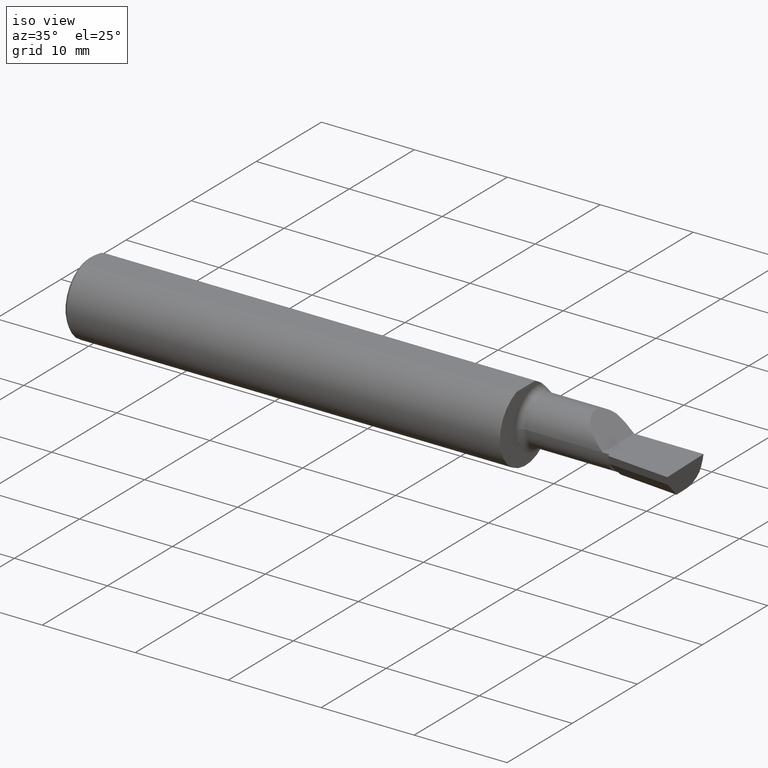
[diagram: clean part render]
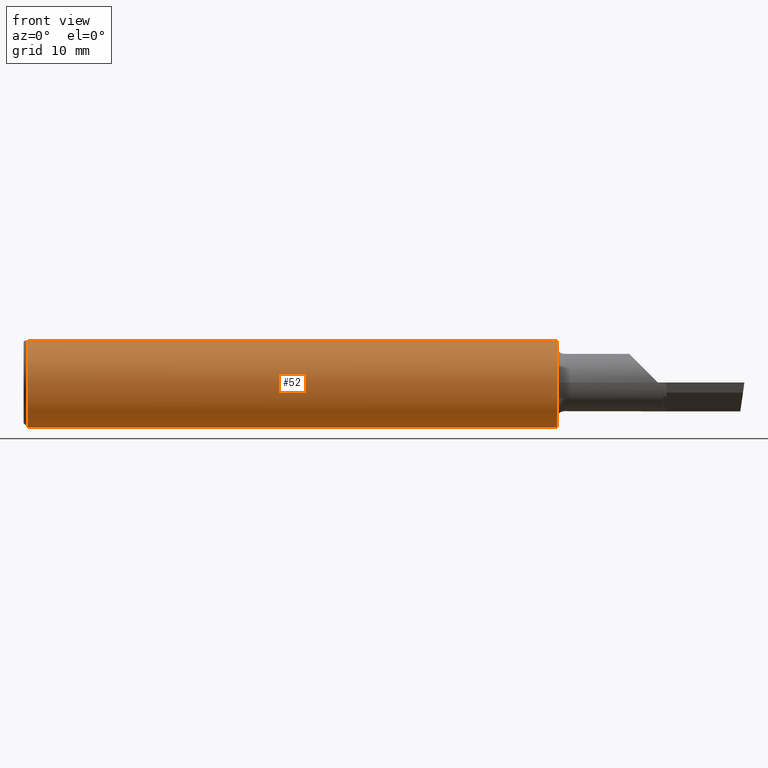
[diagram: tour spotlight — one face highlighted and labeled with its STEP entity id]
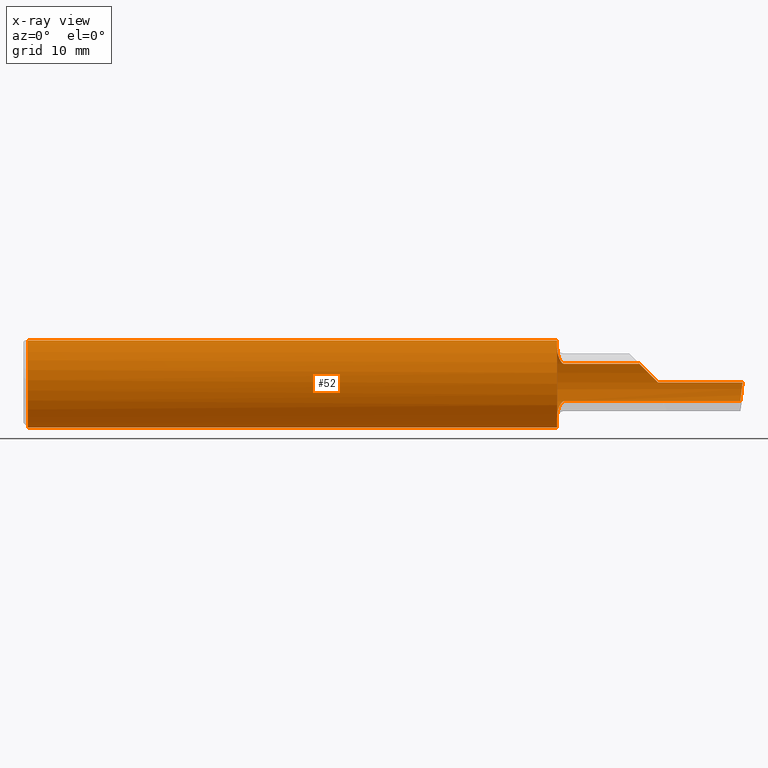
[diagram: x-ray of the same camera — body ghosted, this tour face saturated]
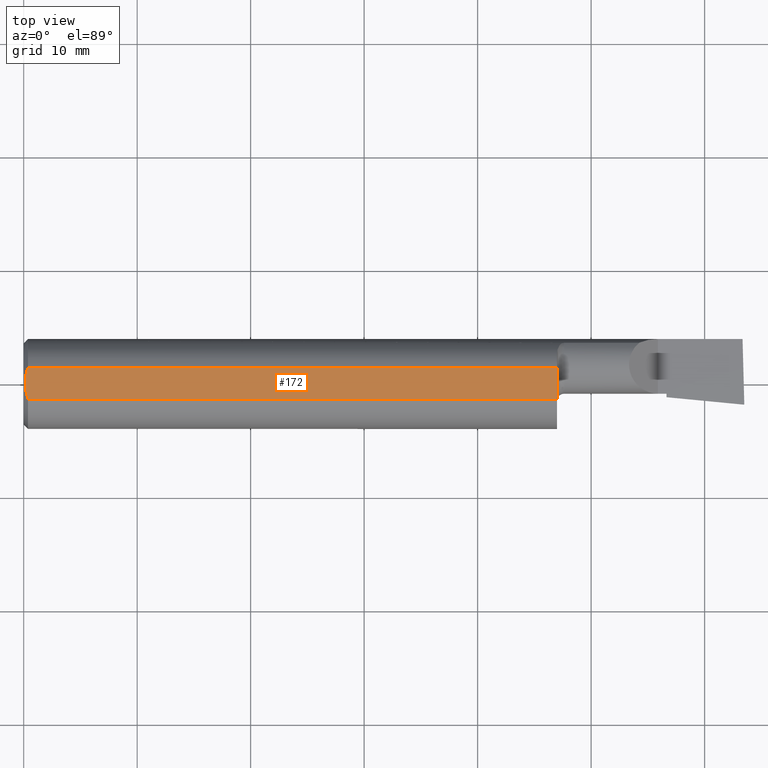
[diagram: tour spotlight — one face highlighted and labeled with its STEP entity id]
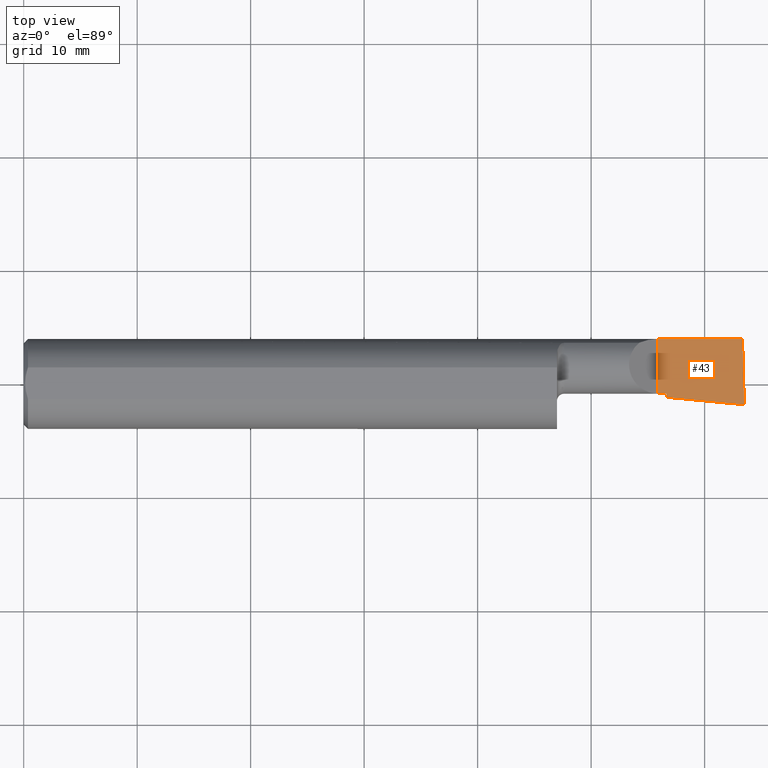
[diagram: tour spotlight — one face highlighted and labeled with its STEP entity id]
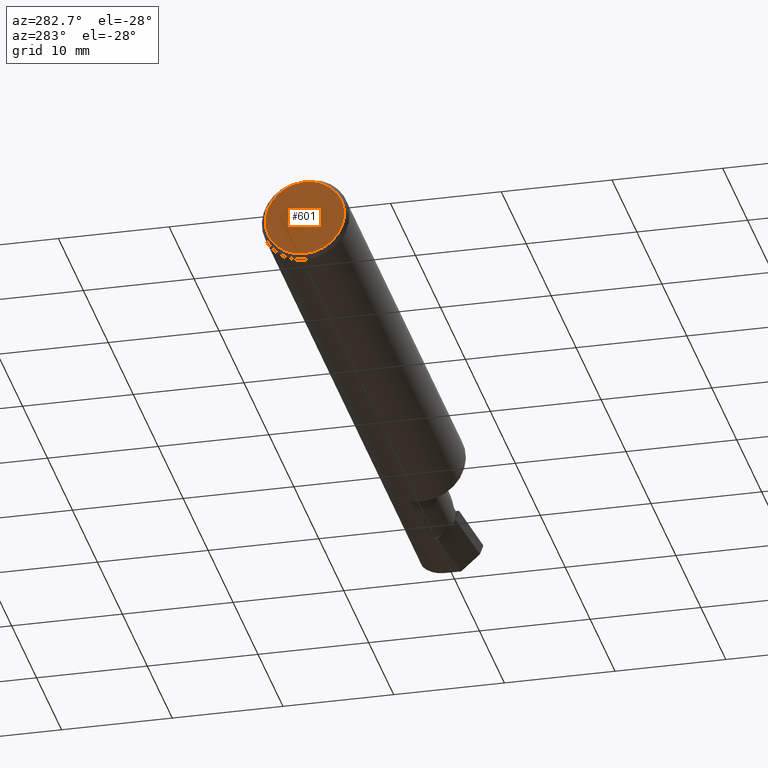
[diagram: tour spotlight — one face highlighted and labeled with its STEP entity id]
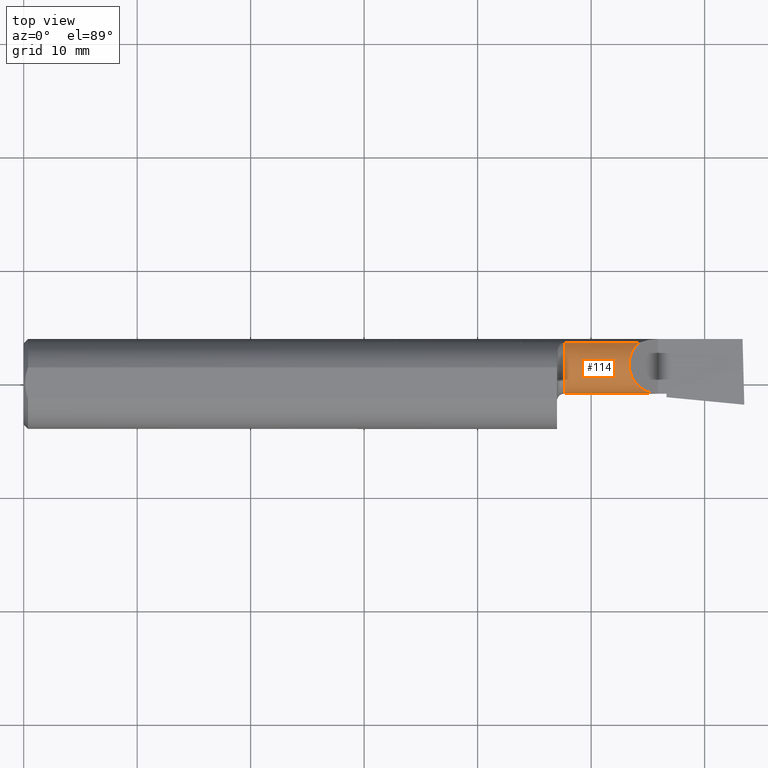
[diagram: tour spotlight — one face highlighted and labeled with its STEP entity id]
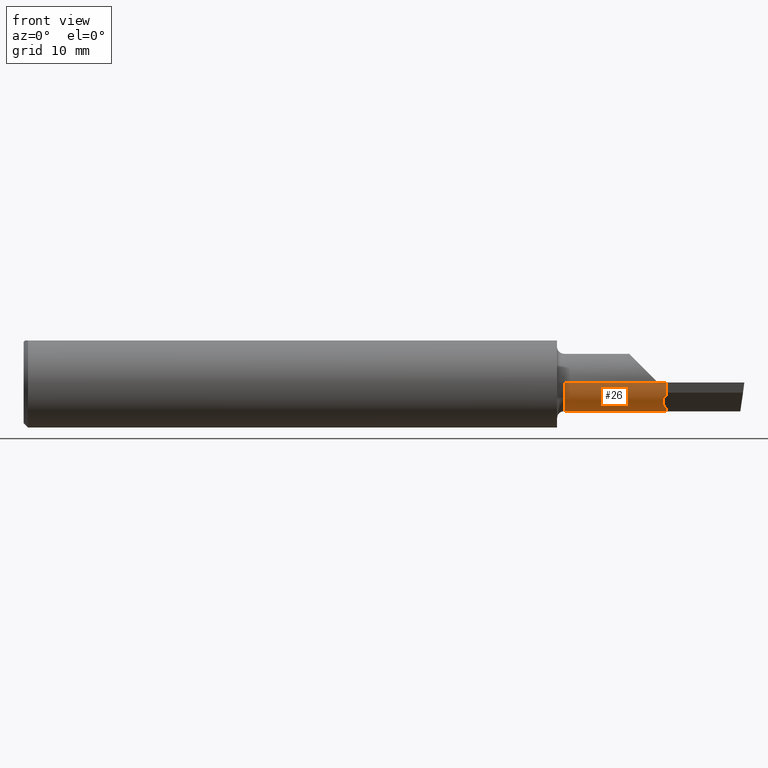
[diagram: tour spotlight — one face highlighted and labeled with its STEP entity id]
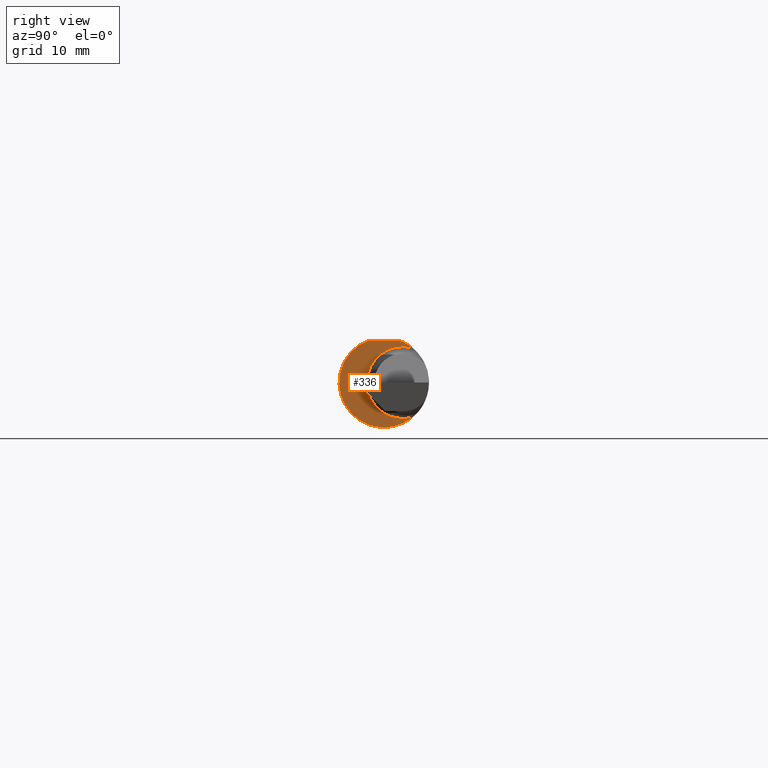
[diagram: tour spotlight — one face highlighted and labeled with its STEP entity id]
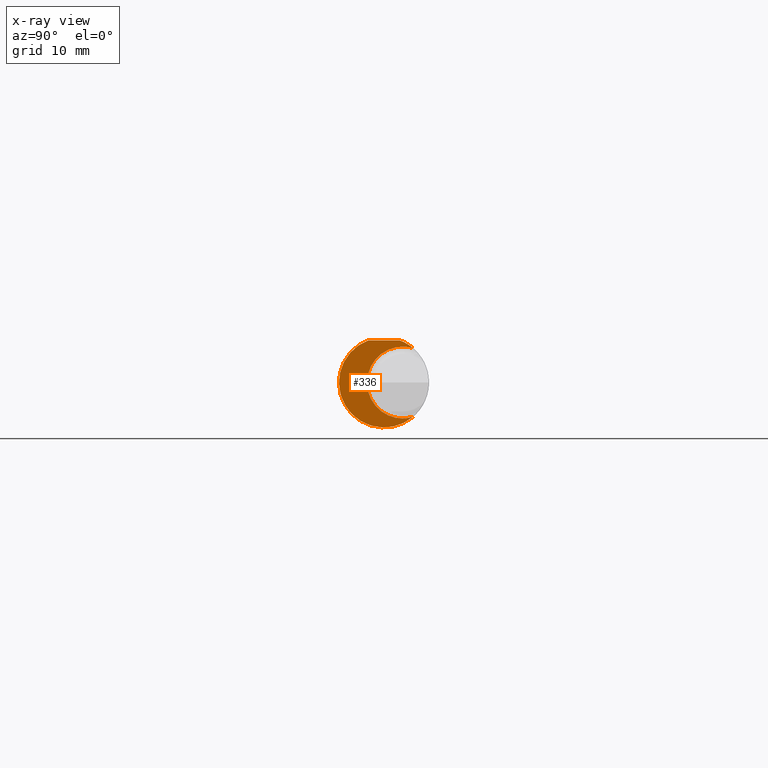
[diagram: x-ray of the same camera — body ghosted, this tour face saturated]
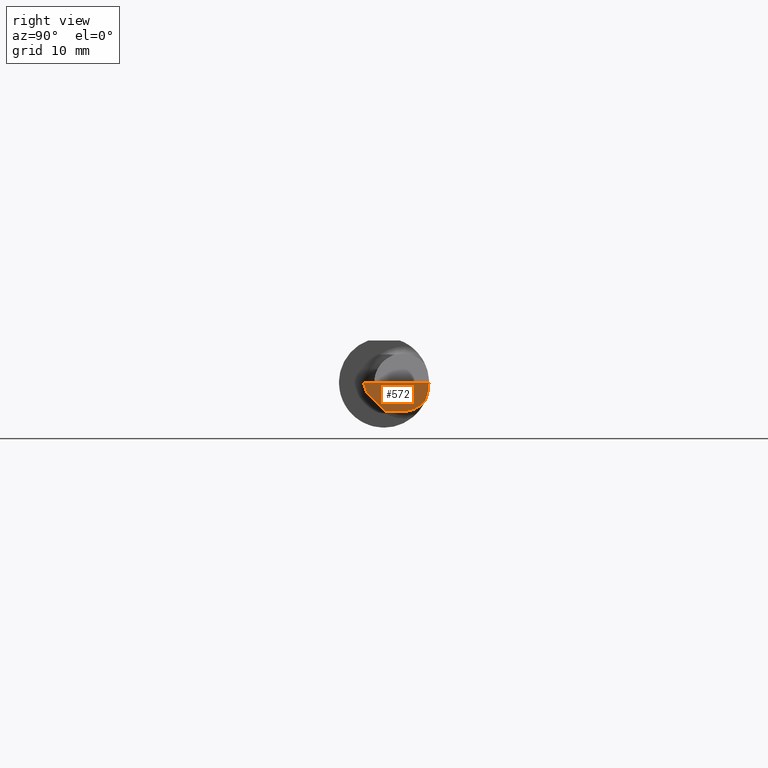
[diagram: tour spotlight — one face highlighted and labeled with its STEP entity id]
A machine part: a face-by-face anatomy tour. The part has 19 B-rep faces; the first image is the clean iso view, then the 8 largest visible faces are spotlighted one at a time (largest first), each with its STEP entity span.

Face 1 — front view, entity #52. An x-ray twin of the same camera follows (body ghosted, this face saturated) — the face is partly hidden behind the body. In plain terms, the highlighted cylindrical surface (partial cylindrical patch) has radius 3.9649 mm, axis along (-1, -0, -0).
Definition (entity closure, byte-faithful):
#3 = VECTOR ( 'NONE', #644, 39.37007874015748143 ) ;
#7 = ORIENTED_EDGE ( 'NONE', *, *, #68, .T. ) ;
#12 = CARTESIAN_POINT ( 'NONE',  ( 1.856590655429605885, 0.1296720675120674460, 0.08713405786343471349 ) ) ;
#13 = CIRCLE ( 'NONE', #44, 0.1560999999999999888 ) ;
#18 = CARTESIAN_POINT ( 'NONE',  ( 1.863017092274625641, 0.1374043365808043093, 0.07413505991998713129 ) ) ;
#19 = ORIENTED_EDGE ( 'NONE', *, *, #513, .T. ) ;
#36 = ORIENTED_EDGE ( 'NONE', *, *, #663, .T. ) ;
#42 = VERTEX_POINT ( 'NONE', #247 ) ;
#44 = AXIS2_PLACEMENT_3D ( 'NONE', #483, #261, #592 ) ;
#49 = B_SPLINE_CURVE_WITH_KNOTS ( 'NONE', 3,
 ( #459, #516, #669, #90, #499, #12, #230, #18, #186, #563, #306, #408, #620, #455 ),
 .UNSPECIFIED., .F., .F.,
 ( 4, 2, 2, 2, 2, 2, 4 ),
 ( 0.0001856976868807074985, 0.0006805519038525506895, 0.001175406120824394043, 0.001670260337796237180, 0.001917687446282158748, 0.002041401000525119858, 0.002165114554768081401 ),
 .UNSPECIFIED. ) ;
#52 = ADVANCED_FACE ( 'NONE', ( #679 ), #232, .T. ) ;
#53 = DIRECTION ( 'NONE',  ( 0.000000000000000000, 0.000000000000000000, 1.000000000000000000 ) ) ;
#56 = LINE ( 'NONE', #547, #133 ) ;
#58 = CARTESIAN_POINT ( 'NONE',  ( 2.052500000000000213, 0.1419939393939392558, -0.06484544066771610882 ) ) ;
#63 = B_SPLINE_CURVE_WITH_KNOTS ( 'NONE', 3,
 ( #411, #682, #343, #194, #80, #294, #419, #634, #354, #74, #286, #501, #507, #415 ),
 .UNSPECIFIED., .F., .F.,
 ( 4, 2, 2, 2, 2, 2, 4 ),
 ( 1.961289441070630364E-07, 0.0001258819157031970486, 0.0002515677024622870275, 0.0005029392759804661179, 0.001005682423016824841, 0.001508425570053183781, 0.002011168717089542504 ),
 .UNSPECIFIED. ) ;
#68 = EDGE_CURVE ( 'NONE', #377, #606, #266, .T. ) ;
#74 = CARTESIAN_POINT ( 'NONE',  ( 1.853264033160802349, 0.1222037927935205881, -0.09733121088759384698 ) ) ;
#80 = CARTESIAN_POINT ( 'NONE',  ( 1.867803744158916146, 0.1404244429940951777, -0.06818941713933217297 ) ) ;
#85 = CARTESIAN_POINT ( 'NONE',  ( 2.135154559332283597, 0.1419939393939393113, 0.06484544066771606718 ) ) ;
#90 = CARTESIAN_POINT ( 'NONE',  ( 1.852040506864490288, 0.1180407066556266177, 0.1023492120876700051 ) ) ;
#98 = DIRECTION ( 'NONE',  ( -1.000000000000000000, -0.000000000000000000, -0.000000000000000000 ) ) ;
#113 = LINE ( 'NONE', #607, #552 ) ;
#116 = ORIENTED_EDGE ( 'NONE', *, *, #464, .F. ) ;
#117 = ORIENTED_EDGE ( 'NONE', *, *, #138, .T. ) ;
#118 = CARTESIAN_POINT ( 'NONE',  ( 0.01499999999999999944, -0.05497272050753897882, 0.1461000000000000076 ) ) ;
#123 = DIRECTION ( 'NONE',  ( 0.000000000000000000, -1.000000000000000000, 0.000000000000000000 ) ) ;
#128 = CARTESIAN_POINT ( 'NONE',  ( 2.052500000000000213, 0.1419939393939392558, 0.06484544066771610882 ) ) ;
#132 = CIRCLE ( 'NONE', #491, 0.1560999999999999888 ) ;
#133 = VECTOR ( 'NONE', #435, 39.37007874015748143 ) ;
#134 = DIRECTION ( 'NONE',  ( 1.000000000000000000, -3.414809992080329023E-18, 0.000000000000000000 ) ) ;
#136 = CARTESIAN_POINT ( 'NONE',  ( 2.493892030279779792, 0.1560999999999997945, 6.888552856243478599E-17 ) ) ;
#138 = EDGE_CURVE ( 'NONE', #169, #684, #13, .T. ) ;
#152 = CARTESIAN_POINT ( 'NONE',  ( 0.01499999999999999424, 0.000000000000000000, 0.000000000000000000 ) ) ;
#161 = VERTEX_POINT ( 'NONE', #628 ) ;
#169 = VERTEX_POINT ( 'NONE', #521 ) ;
#171 = EDGE_LOOP ( 'NONE', ( #19, #7, #697, #209, #117, #446, #503, #116, #36, #588, #535, #482, #365 ) ) ;
#186 = CARTESIAN_POINT ( 'NONE',  ( 1.864666516289593456, 0.1387430930441306276, 0.07158177069671561865 ) ) ;
#189 = CARTESIAN_POINT ( 'NONE',  ( 2.200000000000000178, 0.1560999999999997667, 9.797174393178826150E-17 ) ) ;
#192 = CARTESIAN_POINT ( 'NONE',  ( 1.875000000000000000, 0.1419939393939390615, -0.06484544066771637250 ) ) ;
#194 = CARTESIAN_POINT ( 'NONE',  ( 1.868987086440955903, 0.1409404987250978125, -0.06711069163632751855 ) ) ;
#195 = DIRECTION ( 'NONE',  ( -1.000000000000000000, -0.000000000000000000, -0.000000000000000000 ) ) ;
#209 = ORIENTED_EDGE ( 'NONE', *, *, #250, .T. ) ;
#211 = DIRECTION ( 'NONE',  ( -1.000000000000000000, -0.000000000000000000, -0.000000000000000000 ) ) ;
#219 = CIRCLE ( 'NONE', #476, 0.1560999999999999888 ) ;
#223 = LINE ( 'NONE', #58, #292 ) ;
#226 = EDGE_CURVE ( 'NONE', #42, #238, #622, .T. ) ;
#230 = CARTESIAN_POINT ( 'NONE',  ( 1.858665904659250856, 0.1330436853938329056, 0.08186319721956687723 ) ) ;
#232 = CYLINDRICAL_SURFACE ( 'NONE', #652, 0.1560999999999999888 ) ;
#238 = VERTEX_POINT ( 'NONE', #85 ) ;
#239 = CARTESIAN_POINT ( 'NONE',  ( 2.135154559332283597, 0.1419939393939393113, 0.06484544066771606718 ) ) ;
#244 = VECTOR ( 'NONE', #134, 39.37007874015748143 ) ;
#247 = CARTESIAN_POINT ( 'NONE',  ( 1.875000000000000000, 0.1419939393939390060, 0.06484544066771646964 ) ) ;
#249 = CARTESIAN_POINT ( 'NONE',  ( 0.01499999999999999424, 0.05497272050753903433, 0.1460999999999999521 ) ) ;
#250 = EDGE_CURVE ( 'NONE', #302, #169, #63, .T. ) ;
#261 = DIRECTION ( 'NONE',  ( -1.000000000000000000, 3.414809992080329023E-18, -0.000000000000000000 ) ) ;
#266 =( BOUNDED_CURVE ( )  B_SPLINE_CURVE ( 3, ( #136, #454, #569, #612 ),
 .UNSPECIFIED., .F., .F. ) 
 B_SPLINE_CURVE_WITH_KNOTS ( ( 4, 4 ),
 ( 4.934903206476686677, 5.363296268785054721 ),
 .UNSPECIFIED. ) 
 CURVE ( )  GEOMETRIC_REPRESENTATION_ITEM ( )  RATIONAL_B_SPLINE_CURVE ( ( 1.000000000000000000, 0.9847649979006014576, 0.9847649979006014576, 1.000000000000000000 ) ) 
 REPRESENTATION_ITEM ( '' )  );
#269 = EDGE_CURVE ( 'NONE', #238, #608, #561, .T. ) ;
#270 = CARTESIAN_POINT ( 'NONE',  ( 1.850000000000000311, -0.05497272050753900657, 0.1461000000000000076 ) ) ;
#271 = VERTEX_POINT ( 'NONE', #512 ) ;
#286 = CARTESIAN_POINT ( 'NONE',  ( 1.852063943834881599, 0.1181307192064760814, -0.1022448908112570387 ) ) ;
#289 = CARTESIAN_POINT ( 'NONE',  ( 0.000000000000000000, 0.000000000000000000, 0.000000000000000000 ) ) ;
#292 = VECTOR ( 'NONE', #484, 39.37007874015748143 ) ;
#294 = CARTESIAN_POINT ( 'NONE',  ( 1.864650979716347967, 0.1387334617349063881, -0.07160083655282396820 ) ) ;
#302 = VERTEX_POINT ( 'NONE', #192 ) ;
#306 = CARTESIAN_POINT ( 'NONE',  ( 1.868988484139260109, 0.1409410548628156068, 0.06710952210203094404 ) ) ;
#318 = EDGE_CURVE ( 'NONE', #271, #161, #132, .T. ) ;
#339 = VERTEX_POINT ( 'NONE', #249 ) ;
#343 = CARTESIAN_POINT ( 'NONE',  ( 1.871725699135996068, 0.1417275062431943844, -0.06543227863119877030 ) ) ;
#344 = CIRCLE ( 'NONE', #623, 0.1560999999999999888 ) ;
#354 = CARTESIAN_POINT ( 'NONE',  ( 1.856590010709524785, 0.1296703571699485136, -0.08713627291424022592 ) ) ;
#359 = EDGE_CURVE ( 'NONE', #161, #42, #49, .T. ) ;
#365 = ORIENTED_EDGE ( 'NONE', *, *, #269, .T. ) ;
#377 = VERTEX_POINT ( 'NONE', #394 ) ;
#385 = CARTESIAN_POINT ( 'NONE',  ( 2.200000000000000178, 0.1560999999999997667, 9.797174393178826150E-17 ) ) ;
#394 = CARTESIAN_POINT ( 'NONE',  ( 2.493892030279779792, 0.1560999999999997945, 6.888552856243478599E-17 ) ) ;
#408 = CARTESIAN_POINT ( 'NONE',  ( 1.871727793412432339, 0.1417279534125320539, 0.06543130843947214670 ) ) ;
#411 = CARTESIAN_POINT ( 'NONE',  ( 1.875000000000000000, 0.1419939393939390615, -0.06484544066771637250 ) ) ;
#415 = CARTESIAN_POINT ( 'NONE',  ( 1.850000000000000311, 0.09941818181818162792, -0.1203463132961162807 ) ) ;
#419 = CARTESIAN_POINT ( 'NONE',  ( 1.862996561902688919, 0.1373850824029523299, -0.07416982835688787357 ) ) ;
#425 = DIRECTION ( 'NONE',  ( -1.000000000000000000, -0.000000000000000000, -0.000000000000000000 ) ) ;
#435 = DIRECTION ( 'NONE',  ( 1.000000000000000000, 0.000000000000000000, 0.000000000000000000 ) ) ;
#444 = CARTESIAN_POINT ( 'NONE',  ( 0.01499999999999999424, 0.000000000000000000, -0.1560999999999999888 ) ) ;
#446 = ORIENTED_EDGE ( 'NONE', *, *, #551, .T. ) ;
#454 = CARTESIAN_POINT ( 'NONE',  ( 2.491232419704100920, 0.1561000000000000443, -0.02246288137099513443 ) ) ;
#455 = CARTESIAN_POINT ( 'NONE',  ( 1.875000000000000000, 0.1419939393939390060, 0.06484544066771646964 ) ) ;
#459 = CARTESIAN_POINT ( 'NONE',  ( 1.850000000000000311, 0.09941818181818162792, 0.1203463132961162807 ) ) ;
#461 = CARTESIAN_POINT ( 'NONE',  ( 2.155587570325277369, 0.1513252362624134539, 0.04441242967472209396 ) ) ;
#464 = EDGE_CURVE ( 'NONE', #339, #693, #219, .T. ) ;
#476 = AXIS2_PLACEMENT_3D ( 'NONE', #537, #425, #53 ) ;
#482 = ORIENTED_EDGE ( 'NONE', *, *, #226, .T. ) ;
#483 = CARTESIAN_POINT ( 'NONE',  ( 1.850000000000000311, 0.000000000000000000, 0.000000000000000000 ) ) ;
#484 = DIRECTION ( 'NONE',  ( -1.000000000000000000, 3.414809992080329023E-18, -0.000000000000000000 ) ) ;
#489 = CARTESIAN_POINT ( 'NONE',  ( 2.486592206520481518, 0.1419939393939392558, -0.06484544066771610882 ) ) ;
#491 = AXIS2_PLACEMENT_3D ( 'NONE', #510, #579, #123 ) ;
#496 = EDGE_CURVE ( 'NONE', #693, #655, #344, .T. ) ;
#499 = CARTESIAN_POINT ( 'NONE',  ( 1.853262464810605081, 0.1222000088982459071, 0.09733625715976138015 ) ) ;
#501 = CARTESIAN_POINT ( 'NONE',  ( 1.850428134837082128, 0.1092850169809853889, -0.1116497630123364365 ) ) ;
#503 = ORIENTED_EDGE ( 'NONE', *, *, #496, .F. ) ;
#507 = CARTESIAN_POINT ( 'NONE',  ( 1.849999999999999645, 0.1044772303701483468, -0.1161670294028998435 ) ) ;
#510 = CARTESIAN_POINT ( 'NONE',  ( 1.850000000000000311, 0.000000000000000000, 0.000000000000000000 ) ) ;
#512 = CARTESIAN_POINT ( 'NONE',  ( 1.850000000000000311, 0.05497272050753902739, 0.1460999999999999521 ) ) ;
#513 = EDGE_CURVE ( 'NONE', #608, #377, #636, .T. ) ;
#516 = CARTESIAN_POINT ( 'NONE',  ( 1.850000000000000311, 0.1044500923568687095, 0.1161894481365072507 ) ) ;
#521 = CARTESIAN_POINT ( 'NONE',  ( 1.850000000000000311, 0.09941818181818162792, -0.1203463132961162807 ) ) ;
#530 = CARTESIAN_POINT ( 'NONE',  ( 3.121792066109142165E-32, 0.1560999999999999333, 3.155924005931204823E-16 ) ) ;
#535 = ORIENTED_EDGE ( 'NONE', *, *, #359, .T. ) ;
#537 = CARTESIAN_POINT ( 'NONE',  ( 0.01499999999999999424, 0.000000000000000000, 0.000000000000000000 ) ) ;
#547 = CARTESIAN_POINT ( 'NONE',  ( 0.000000000000000000, 0.05497272050753903433, 0.1460999999999999521 ) ) ;
#551 = EDGE_CURVE ( 'NONE', #684, #655, #113, .T. ) ;
#552 = VECTOR ( 'NONE', #211, 39.37007874015748143 ) ;
#561 =( BOUNDED_CURVE ( )  B_SPLINE_CURVE ( 3, ( #239, #461, #671, #189 ),
 .UNSPECIFIED., .F., .T. ) 
 B_SPLINE_CURVE_WITH_KNOTS ( ( 4, 4 ),
 ( 1.142403264486529624, 1.570796326794896336 ),
 .UNSPECIFIED. ) 
 CURVE ( )  GEOMETRIC_REPRESENTATION_ITEM ( )  RATIONAL_B_SPLINE_CURVE ( ( 1.000000000000000000, 0.9847649979006014576, 0.9847649979006014576, 1.000000000000000000 ) ) 
 REPRESENTATION_ITEM ( '' )  );
#563 = CARTESIAN_POINT ( 'NONE',  ( 1.867808428589329273, 0.1404263024719109021, 0.06818548243543506859 ) ) ;
#569 = CARTESIAN_POINT ( 'NONE',  ( 2.488761500660856107, 0.1513252362624135372, -0.04441242967472200376 ) ) ;
#574 = DIRECTION ( 'NONE',  ( 0.000000000000000000, 0.000000000000000000, 1.000000000000000000 ) ) ;
#579 = DIRECTION ( 'NONE',  ( -1.000000000000000000, 3.414809992080329023E-18, -0.000000000000000000 ) ) ;
#588 = ORIENTED_EDGE ( 'NONE', *, *, #318, .T. ) ;
#592 = DIRECTION ( 'NONE',  ( 0.000000000000000000, -1.000000000000000000, 0.000000000000000000 ) ) ;
#606 = VERTEX_POINT ( 'NONE', #489 ) ;
#607 = CARTESIAN_POINT ( 'NONE',  ( 0.000000000000000000, -0.05497272050753897882, 0.1461000000000000076 ) ) ;
#608 = VERTEX_POINT ( 'NONE', #385 ) ;
#612 = CARTESIAN_POINT ( 'NONE',  ( 2.486592206520481518, 0.1419939393939392558, -0.06484544066771610882 ) ) ;
#620 = CARTESIAN_POINT ( 'NONE',  ( 1.873328253254593845, 0.1419939393940946315, 0.06484544066737613077 ) ) ;
#622 = LINE ( 'NONE', #128, #244 ) ;
#623 = AXIS2_PLACEMENT_3D ( 'NONE', #152, #98, #690 ) ;
#628 = CARTESIAN_POINT ( 'NONE',  ( 1.850000000000000311, 0.09941818181818162792, 0.1203463132961162807 ) ) ;
#634 = CARTESIAN_POINT ( 'NONE',  ( 1.858682090340783244, 0.1330572531291638605, -0.08183785561185286106 ) ) ;
#636 = LINE ( 'NONE', #530, #3 ) ;
#644 = DIRECTION ( 'NONE',  ( 1.000000000000000000, 0.000000000000000000, 0.000000000000000000 ) ) ;
#652 = AXIS2_PLACEMENT_3D ( 'NONE', #289, #195, #574 ) ;
#655 = VERTEX_POINT ( 'NONE', #118 ) ;
#663 = EDGE_CURVE ( 'NONE', #339, #271, #56, .T. ) ;
#669 = CARTESIAN_POINT ( 'NONE',  ( 1.850415155711667037, 0.1091772789608302235, 0.1117554983051645134 ) ) ;
#671 = CARTESIAN_POINT ( 'NONE',  ( 2.177537118629004453, 0.1560999999999999888, 0.02246288137099531138 ) ) ;
#677 = EDGE_CURVE ( 'NONE', #606, #302, #223, .T. ) ;
#679 = FACE_OUTER_BOUND ( 'NONE', #171, .T. ) ;
#682 = CARTESIAN_POINT ( 'NONE',  ( 1.873318217257565310, 0.1419939393939391725, -0.06484544066771646964 ) ) ;
#684 = VERTEX_POINT ( 'NONE', #270 ) ;
#690 = DIRECTION ( 'NONE',  ( 0.000000000000000000, 0.000000000000000000, 1.000000000000000000 ) ) ;
#693 = VERTEX_POINT ( 'NONE', #444 ) ;
#697 = ORIENTED_EDGE ( 'NONE', *, *, #677, .T. ) ;

Face 2 — top view, entity #172. In plain terms, the highlighted planar face has unit normal (0, -0, -1).
Definition (entity closure, byte-faithful):
#29 = CARTESIAN_POINT ( 'NONE',  ( 0.01499999999999999944, -0.05497272050753897882, 0.1461000000000000076 ) ) ;
#32 = CARTESIAN_POINT ( 'NONE',  ( 0.005000000000000138882, 0.009391435229055633896, 0.1460999999999999521 ) ) ;
#56 = LINE ( 'NONE', #547, #133 ) ;
#59 = ORIENTED_EDGE ( 'NONE', *, *, #663, .F. ) ;
#62 = EDGE_CURVE ( 'NONE', #684, #271, #629, .T. ) ;
#65 = EDGE_LOOP ( 'NONE', ( #466, #647, #59, #443, #99 ) ) ;
#77 = CARTESIAN_POINT ( 'NONE',  ( 0.005000000000000177913, 2.057148876208899831E-17, 0.1460999999999999799 ) ) ;
#99 = ORIENTED_EDGE ( 'NONE', *, *, #370, .F. ) ;
#113 = LINE ( 'NONE', #607, #552 ) ;
#118 = CARTESIAN_POINT ( 'NONE',  ( 0.01499999999999999944, -0.05497272050753897882, 0.1461000000000000076 ) ) ;
#133 = VECTOR ( 'NONE', #435, 39.37007874015748143 ) ;
#170 = B_SPLINE_CURVE_WITH_KNOTS ( 'NONE', 3,
 ( #576, #32, #528, #540, #689, #340 ),
 .UNSPECIFIED., .F., .F.,
 ( 4, 2, 4 ),
 ( 0.002884734412378666280, 0.003593604306281239329, 0.004302474200183812811 ),
 .UNSPECIFIED. ) ;
#172 = ADVANCED_FACE ( 'NONE', ( #246 ), #631, .F. ) ;
#176 = CARTESIAN_POINT ( 'NONE',  ( 0.009356849677356088302, -0.03706298561014170767, 0.1461000000000000354 ) ) ;
#179 = CARTESIAN_POINT ( 'NONE',  ( 0.005910707775482461519, -0.01866948012536269463, 0.1460999999999999799 ) ) ;
#182 = CARTESIAN_POINT ( 'NONE',  ( 0.005000000000000139749, -0.009384304010803560733, 0.1460999999999999799 ) ) ;
#211 = DIRECTION ( 'NONE',  ( -1.000000000000000000, -0.000000000000000000, -0.000000000000000000 ) ) ;
#229 = VECTOR ( 'NONE', #578, 39.37007874015748143 ) ;
#231 = DIRECTION ( 'NONE',  ( 0.000000000000000000, 1.000000000000000000, -1.656870447394628111E-16 ) ) ;
#246 = FACE_OUTER_BOUND ( 'NONE', #65, .T. ) ;
#249 = CARTESIAN_POINT ( 'NONE',  ( 0.01499999999999999424, 0.05497272050753903433, 0.1460999999999999521 ) ) ;
#270 = CARTESIAN_POINT ( 'NONE',  ( 1.850000000000000311, -0.05497272050753900657, 0.1461000000000000076 ) ) ;
#271 = VERTEX_POINT ( 'NONE', #512 ) ;
#272 = EDGE_CURVE ( 'NONE', #310, #339, #170, .T. ) ;
#308 = DIRECTION ( 'NONE',  ( 0.000000000000000000, -1.656870447394628111E-16, -1.000000000000000000 ) ) ;
#310 = VERTEX_POINT ( 'NONE', #357 ) ;
#339 = VERTEX_POINT ( 'NONE', #249 ) ;
#340 = CARTESIAN_POINT ( 'NONE',  ( 0.01499999999999999424, 0.05497272050753903433, 0.1460999999999999521 ) ) ;
#357 = CARTESIAN_POINT ( 'NONE',  ( 0.005000000000000177913, 2.057148876208899831E-17, 0.1460999999999999799 ) ) ;
#358 = CARTESIAN_POINT ( 'NONE',  ( 2.500000000000000000, 0.2061000000000000332, 0.1460999999999999521 ) ) ;
#370 = EDGE_CURVE ( 'NONE', #655, #310, #383, .T. ) ;
#383 = B_SPLINE_CURVE_WITH_KNOTS ( 'NONE', 3,
 ( #29, #451, #176, #179, #182, #77 ),
 .UNSPECIFIED., .F., .F.,
 ( 4, 2, 4 ),
 ( 0.001468071159906499112, 0.002176402786142582479, 0.002884734412378666280 ),
 .UNSPECIFIED. ) ;
#391 = AXIS2_PLACEMENT_3D ( 'NONE', #358, #308, #231 ) ;
#435 = DIRECTION ( 'NONE',  ( 1.000000000000000000, 0.000000000000000000, 0.000000000000000000 ) ) ;
#443 = ORIENTED_EDGE ( 'NONE', *, *, #272, .F. ) ;
#451 = CARTESIAN_POINT ( 'NONE',  ( 0.01190375560897322625, -0.04618065518901639382, 0.1461000000000000076 ) ) ;
#466 = ORIENTED_EDGE ( 'NONE', *, *, #551, .F. ) ;
#498 = CARTESIAN_POINT ( 'NONE',  ( 1.850000000000000311, 0.2061000000000000332, 0.1460999999999999521 ) ) ;
#512 = CARTESIAN_POINT ( 'NONE',  ( 1.850000000000000311, 0.05497272050753902739, 0.1460999999999999521 ) ) ;
#528 = CARTESIAN_POINT ( 'NONE',  ( 0.005929349363809115203, 0.01879672308419498561, 0.1461000000000000076 ) ) ;
#540 = CARTESIAN_POINT ( 'NONE',  ( 0.009371209226504017067, 0.03711161584255317364, 0.1460999999999999799 ) ) ;
#547 = CARTESIAN_POINT ( 'NONE',  ( 0.000000000000000000, 0.05497272050753903433, 0.1460999999999999521 ) ) ;
#551 = EDGE_CURVE ( 'NONE', #684, #655, #113, .T. ) ;
#552 = VECTOR ( 'NONE', #211, 39.37007874015748143 ) ;
#576 = CARTESIAN_POINT ( 'NONE',  ( 0.005000000000000177913, 2.057148876208899831E-17, 0.1460999999999999799 ) ) ;
#578 = DIRECTION ( 'NONE',  ( 3.414809992080329023E-18, 1.000000000000000000, -1.656870447394628111E-16 ) ) ;
#607 = CARTESIAN_POINT ( 'NONE',  ( 0.000000000000000000, -0.05497272050753897882, 0.1461000000000000076 ) ) ;
#629 = LINE ( 'NONE', #498, #229 ) ;
#631 = PLANE ( 'NONE',  #391 ) ;
#647 = ORIENTED_EDGE ( 'NONE', *, *, #62, .T. ) ;
#655 = VERTEX_POINT ( 'NONE', #118 ) ;
#663 = EDGE_CURVE ( 'NONE', #339, #271, #56, .T. ) ;
#684 = VERTEX_POINT ( 'NONE', #270 ) ;
#689 = CARTESIAN_POINT ( 'NONE',  ( 0.01187749995209277584, 0.04610609988228757394, 0.1460999999999999799 ) ) ;

Face 3 — top view, entity #43. In plain terms, the highlighted planar face has unit normal (-0, 0, -1).
Definition (entity closure, byte-faithful):
#3 = VECTOR ( 'NONE', #644, 39.37007874015748143 ) ;
#22 = CARTESIAN_POINT ( 'NONE',  ( 2.500000000000000000, -0.07190000000000008884, 1.024442997624098707E-16 ) ) ;
#23 = ORIENTED_EDGE ( 'NONE', *, *, #78, .F. ) ;
#34 = VERTEX_POINT ( 'NONE', #22 ) ;
#43 = ADVANCED_FACE ( 'NONE', ( #356 ), #559, .F. ) ;
#60 = DIRECTION ( 'NONE',  ( -3.414809992080329408E-18, -1.000000000000000000, 3.377878149319092424E-34 ) ) ;
#78 = EDGE_CURVE ( 'NONE', #531, #608, #296, .T. ) ;
#105 = CARTESIAN_POINT ( 'NONE',  ( 2.200000000000000178, -0.03390000000000021468, 9.797174393178826150E-17 ) ) ;
#108 = ORIENTED_EDGE ( 'NONE', *, *, #199, .T. ) ;
#139 = CARTESIAN_POINT ( 'NONE',  ( 2.504767759937919891, -0.2498722748537978433, 6.782458027410943008E-17 ) ) ;
#145 = LINE ( 'NONE', #139, #598 ) ;
#196 = CARTESIAN_POINT ( 'NONE',  ( 2.516991541038281710, -0.07353609931398560895, 6.661542242413441755E-17 ) ) ;
#199 = EDGE_CURVE ( 'NONE', #34, #377, #145, .T. ) ;
#203 = AXIS2_PLACEMENT_3D ( 'NONE', #462, #468, #407 ) ;
#254 = VECTOR ( 'NONE', #471, 39.37007874015748143 ) ;
#256 = VECTOR ( 'NONE', #481, 39.37007874015748854 ) ;
#267 = LINE ( 'NONE', #656, #382 ) ;
#291 = CARTESIAN_POINT ( 'NONE',  ( 2.229999999999999982, -0.03390000000000001346, 0.000000000000000000 ) ) ;
#296 = LINE ( 'NONE', #509, #328 ) ;
#298 = VERTEX_POINT ( 'NONE', #291 ) ;
#301 = DIRECTION ( 'NONE',  ( -0.000000000000000000, 1.000000000000000000, -0.000000000000000000 ) ) ;
#328 = VECTOR ( 'NONE', #301, 39.37007874015748143 ) ;
#356 = FACE_OUTER_BOUND ( 'NONE', #426, .T. ) ;
#366 = CARTESIAN_POINT ( 'NONE',  ( -3.411395182087937181E-19, -0.03390000000000002039, 3.155924005931204823E-16 ) ) ;
#377 = VERTEX_POINT ( 'NONE', #394 ) ;
#382 = VECTOR ( 'NONE', #60, 39.37007874015748143 ) ;
#385 = CARTESIAN_POINT ( 'NONE',  ( 2.200000000000000178, 0.1560999999999997667, 9.797174393178826150E-17 ) ) ;
#386 = ORIENTED_EDGE ( 'NONE', *, *, #492, .T. ) ;
#394 = CARTESIAN_POINT ( 'NONE',  ( 2.493892030279779792, 0.1560999999999997945, 6.888552856243478599E-17 ) ) ;
#407 = DIRECTION ( 'NONE',  ( -1.000000000000000000, 0.000000000000000000, 9.891848030060559526E-17 ) ) ;
#420 = LINE ( 'NONE', #196, #256 ) ;
#426 = EDGE_LOOP ( 'NONE', ( #456, #108, #542, #23, #386, #460 ) ) ;
#456 = ORIENTED_EDGE ( 'NONE', *, *, #477, .T. ) ;
#457 = DIRECTION ( 'NONE',  ( -0.02677973311239052051, 0.9996413586354002678, 2.612414329932748356E-18 ) ) ;
#460 = ORIENTED_EDGE ( 'NONE', *, *, #698, .T. ) ;
#462 = CARTESIAN_POINT ( 'NONE',  ( 2.500000000000000000, -0.2500000000000000555, 6.829619984160658046E-17 ) ) ;
#468 = DIRECTION ( 'NONE',  ( -9.891848030060559526E-17, 0.000000000000000000, -1.000000000000000000 ) ) ;
#471 = DIRECTION ( 'NONE',  ( 1.000000000000000000, -3.414809992080329023E-18, 0.000000000000000000 ) ) ;
#477 = EDGE_CURVE ( 'NONE', #594, #34, #420, .T. ) ;
#481 = DIRECTION ( 'NONE',  ( 0.9953961983671787417, -0.09584575252022420333, -9.831095531899268478E-17 ) ) ;
#492 = EDGE_CURVE ( 'NONE', #531, #298, #692, .T. ) ;
#509 = CARTESIAN_POINT ( 'NONE',  ( 2.200000000000000178, -0.2500000000000000555, 9.797174393178826150E-17 ) ) ;
#513 = EDGE_CURVE ( 'NONE', #608, #377, #636, .T. ) ;
#530 = CARTESIAN_POINT ( 'NONE',  ( 3.121792066109142165E-32, 0.1560999999999999333, 3.155924005931204823E-16 ) ) ;
#531 = VERTEX_POINT ( 'NONE', #105 ) ;
#542 = ORIENTED_EDGE ( 'NONE', *, *, #513, .F. ) ;
#559 = PLANE ( 'NONE',  #203 ) ;
#594 = VERTEX_POINT ( 'NONE', #595 ) ;
#595 = CARTESIAN_POINT ( 'NONE',  ( 2.229999999999999982, -0.04590195698666457019, 9.497440290473414864E-17 ) ) ;
#598 = VECTOR ( 'NONE', #457, 39.37007874015748143 ) ;
#608 = VERTEX_POINT ( 'NONE', #385 ) ;
#636 = LINE ( 'NONE', #530, #3 ) ;
#644 = DIRECTION ( 'NONE',  ( 1.000000000000000000, 0.000000000000000000, 0.000000000000000000 ) ) ;
#656 = CARTESIAN_POINT ( 'NONE',  ( 2.229999999999999982, -0.2500000000000000555, 9.500418952277011559E-17 ) ) ;
#692 = LINE ( 'NONE', #366, #254 ) ;
#698 = EDGE_CURVE ( 'NONE', #298, #594, #267, .T. ) ;

Face 4 — auxiliary view, entity #601. In plain terms, the highlighted planar face has unit normal (1, 0, 0).
Definition (entity closure, byte-faithful):
#20 = EDGE_CURVE ( 'NONE', #84, #40, #545, .T. ) ;
#28 = CARTESIAN_POINT ( 'NONE',  ( 0.000000000000000000, 1.819825143532964315E-17, 0.1410999999999996146 ) ) ;
#40 = VERTEX_POINT ( 'NONE', #28 ) ;
#67 = AXIS2_PLACEMENT_3D ( 'NONE', #217, #696, #597 ) ;
#84 = VERTEX_POINT ( 'NONE', #228 ) ;
#97 = EDGE_CURVE ( 'NONE', #40, #84, #566, .T. ) ;
#122 = CARTESIAN_POINT ( 'NONE',  ( 0.000000000000000000, 0.000000000000000000, 0.000000000000000000 ) ) ;
#129 = DIRECTION ( 'NONE',  ( 0.000000000000000000, 0.000000000000000000, 1.000000000000000000 ) ) ;
#178 = DIRECTION ( 'NONE',  ( -1.000000000000000000, -0.000000000000000000, -0.000000000000000000 ) ) ;
#205 = ORIENTED_EDGE ( 'NONE', *, *, #97, .T. ) ;
#217 = CARTESIAN_POINT ( 'NONE',  ( 0.000000000000000000, 0.000000000000000000, 0.000000000000000000 ) ) ;
#218 = ORIENTED_EDGE ( 'NONE', *, *, #20, .T. ) ;
#228 = CARTESIAN_POINT ( 'NONE',  ( 0.000000000000000000, 0.000000000000000000, -0.1410999999999996146 ) ) ;
#236 = DIRECTION ( 'NONE',  ( 0.000000000000000000, 0.000000000000000000, 1.000000000000000000 ) ) ;
#379 = FACE_OUTER_BOUND ( 'NONE', #691, .T. ) ;
#402 = CARTESIAN_POINT ( 'NONE',  ( 0.000000000000000000, 0.000000000000000000, 0.000000000000000000 ) ) ;
#405 = AXIS2_PLACEMENT_3D ( 'NONE', #402, #178, #236 ) ;
#412 = DIRECTION ( 'NONE',  ( -1.000000000000000000, -0.000000000000000000, -0.000000000000000000 ) ) ;
#424 = AXIS2_PLACEMENT_3D ( 'NONE', #122, #412, #129 ) ;
#433 = PLANE ( 'NONE',  #67 ) ;
#545 = CIRCLE ( 'NONE', #424, 0.1410999999999996146 ) ;
#566 = CIRCLE ( 'NONE', #405, 0.1410999999999996146 ) ;
#597 = DIRECTION ( 'NONE',  ( 0.000000000000000000, 0.000000000000000000, -1.000000000000000000 ) ) ;
#601 = ADVANCED_FACE ( 'NONE', ( #379 ), #433, .F. ) ;
#691 = EDGE_LOOP ( 'NONE', ( #218, #205 ) ) ;
#696 = DIRECTION ( 'NONE',  ( 1.000000000000000000, 0.000000000000000000, 0.000000000000000000 ) ) ;

Face 5 — top view, entity #114. In plain terms, the highlighted cylindrical surface (edge-blend (fillet) strip) has radius 2.5375 mm, axis along (-1, 0, -0).
Definition (entity closure, byte-faithful):
#5 = ORIENTED_EDGE ( 'NONE', *, *, #390, .F. ) ;
#42 = VERTEX_POINT ( 'NONE', #247 ) ;
#85 = CARTESIAN_POINT ( 'NONE',  ( 2.135154559332283597, 0.1419939393939393113, 0.06484544066771606718 ) ) ;
#93 = AXIS2_PLACEMENT_3D ( 'NONE', #242, #398, #465 ) ;
#105 = CARTESIAN_POINT ( 'NONE',  ( 2.200000000000000178, -0.03390000000000021468, 9.797174393178826150E-17 ) ) ;
#114 = ADVANCED_FACE ( 'NONE', ( #458 ), #668, .T. ) ;
#128 = CARTESIAN_POINT ( 'NONE',  ( 2.052500000000000213, 0.1419939393939392558, 0.06484544066771610882 ) ) ;
#134 = DIRECTION ( 'NONE',  ( 1.000000000000000000, -3.414809992080329023E-18, 0.000000000000000000 ) ) ;
#167 = VERTEX_POINT ( 'NONE', #363 ) ;
#188 = AXIS2_PLACEMENT_3D ( 'NONE', #241, #352, #660 ) ;
#226 = EDGE_CURVE ( 'NONE', #42, #238, #622, .T. ) ;
#238 = VERTEX_POINT ( 'NONE', #85 ) ;
#241 = CARTESIAN_POINT ( 'NONE',  ( 0.000000000000000000, 0.06600000000000000311, 0.000000000000000000 ) ) ;
#242 = CARTESIAN_POINT ( 'NONE',  ( 1.875000000000000000, 0.06599999999999998923, 0.000000000000000000 ) ) ;
#244 = VECTOR ( 'NONE', #134, 39.37007874015748143 ) ;
#247 = CARTESIAN_POINT ( 'NONE',  ( 1.875000000000000000, 0.1419939393939390060, 0.06484544066771646964 ) ) ;
#352 = DIRECTION ( 'NONE',  ( -1.000000000000000000, 3.414809992080329023E-18, -0.000000000000000000 ) ) ;
#363 = CARTESIAN_POINT ( 'NONE',  ( 1.875000000000000000, -0.03390000000000006203, 0.000000000000000000 ) ) ;
#387 = EDGE_CURVE ( 'NONE', #167, #42, #502, .T. ) ;
#390 = EDGE_CURVE ( 'NONE', #531, #167, #413, .T. ) ;
#398 = DIRECTION ( 'NONE',  ( -1.000000000000000000, 3.414809992080329023E-18, -0.000000000000000000 ) ) ;
#413 = LINE ( 'NONE', #613, #583 ) ;
#442 = CARTESIAN_POINT ( 'NONE',  ( 2.200000000000000178, -0.03390000000000021468, 9.797174393178826150E-17 ) ) ;
#458 = FACE_OUTER_BOUND ( 'NONE', #550, .T. ) ;
#465 = DIRECTION ( 'NONE',  ( 0.000000000000000000, -1.000000000000000000, 0.000000000000000000 ) ) ;
#502 = CIRCLE ( 'NONE', #93, 0.09990000000000005820 ) ;
#531 = VERTEX_POINT ( 'NONE', #105 ) ;
#538 = ORIENTED_EDGE ( 'NONE', *, *, #555, .F. ) ;
#539 =( BOUNDED_CURVE ( )  B_SPLINE_CURVE ( 3, ( #649, #699, #541, #442 ),
 .UNSPECIFIED., .F., .F. ) 
 B_SPLINE_CURVE_WITH_KNOTS ( ( 4, 4 ),
 ( 5.418794317430681851, 7.853981633974482790 ),
 .UNSPECIFIED. ) 
 CURVE ( )  GEOMETRIC_REPRESENTATION_ITEM ( )  RATIONAL_B_SPLINE_CURVE ( ( 1.000000000000000000, 0.5639363621110593527, 0.5639363621110593527, 1.000000000000000000 ) ) 
 REPRESENTATION_ITEM ( '' )  );
#541 = CARTESIAN_POINT ( 'NONE',  ( 2.089191818750234741, -0.03390000000000004121, 0.1108081812497644647 ) ) ;
#550 = EDGE_LOOP ( 'NONE', ( #5, #538, #681, #591 ) ) ;
#555 = EDGE_CURVE ( 'NONE', #238, #531, #539, .T. ) ;
#583 = VECTOR ( 'NONE', #617, 39.37007874015748143 ) ;
#591 = ORIENTED_EDGE ( 'NONE', *, *, #387, .F. ) ;
#613 = CARTESIAN_POINT ( 'NONE',  ( -3.411395182088250145E-19, -0.03390000000000004121, 0.000000000000000000 ) ) ;
#617 = DIRECTION ( 'NONE',  ( -1.000000000000000000, 3.414809992080329023E-18, -0.000000000000000000 ) ) ;
#622 = LINE ( 'NONE', #128, #244 ) ;
#649 = CARTESIAN_POINT ( 'NONE',  ( 2.135154559332283597, 0.1419939393939393113, 0.06484544066771606718 ) ) ;
#660 = DIRECTION ( 'NONE',  ( -3.414809992080329023E-18, -1.000000000000000000, 0.000000000000000000 ) ) ;
#668 = CYLINDRICAL_SURFACE ( 'NONE', #188, 0.09990000000000004432 ) ;
#681 = ORIENTED_EDGE ( 'NONE', *, *, #226, .F. ) ;
#699 = CARTESIAN_POINT ( 'NONE',  ( 2.050862765435913726, 0.07006795998724148211, 0.1491372345640848418 ) ) ;

Face 6 — front view, entity #26. In plain terms, the highlighted cylindrical surface (edge-blend (fillet) strip) has radius 2.5375 mm, axis along (-1, 0, -0).
Definition (entity closure, byte-faithful):
#11 = CARTESIAN_POINT ( 'NONE',  ( 2.229999999999999982, -0.02114125901369682745, -0.04885090559557524192 ) ) ;
#17 = CARTESIAN_POINT ( 'NONE',  ( 0.000000000000000000, 0.06600000000000000311, 0.000000000000000000 ) ) ;
#24 = CARTESIAN_POINT ( 'NONE',  ( 2.218438857550834253, -0.02249656715429233095, -0.04635048653364754606 ) ) ;
#26 = ADVANCED_FACE ( 'NONE', ( #519 ), #71, .T. ) ;
#30 =( BOUNDED_CURVE ( )  B_SPLINE_CURVE ( 3, ( #88, #235, #350, #517 ),
 .UNSPECIFIED., .F., .T. ) 
 B_SPLINE_CURVE_WITH_KNOTS ( ( 4, 4 ),
 ( 5.641308543522681518, 6.505699533271584123 ),
 .UNSPECIFIED. ) 
 CURVE ( )  GEOMETRIC_REPRESENTATION_ITEM ( )  RATIONAL_B_SPLINE_CURVE ( ( 1.000000000000000000, 0.9386988813357775019, 0.9386988813357775019, 1.000000000000000000 ) ) 
 REPRESENTATION_ITEM ( '' )  );
#58 = CARTESIAN_POINT ( 'NONE',  ( 2.052500000000000213, 0.1419939393939392558, -0.06484544066771610882 ) ) ;
#66 = CIRCLE ( 'NONE', #156, 0.09990000000000005820 ) ;
#71 = CYLINDRICAL_SURFACE ( 'NONE', #293, 0.09990000000000004432 ) ;
#72 = EDGE_CURVE ( 'NONE', #185, #505, #437, .T. ) ;
#76 = DIRECTION ( 'NONE',  ( -1.000000000000000000, 3.414809992080329023E-18, -0.000000000000000000 ) ) ;
#79 = VECTOR ( 'NONE', #252, 39.37007874015748143 ) ;
#82 = CARTESIAN_POINT ( 'NONE',  ( 2.218438857550834253, -0.02249656715429233095, -0.04635048653364754606 ) ) ;
#88 = CARTESIAN_POINT ( 'NONE',  ( 2.486592206520481518, 0.1419939393939392558, -0.06484544066771610882 ) ) ;
#89 = CARTESIAN_POINT ( 'NONE',  ( 2.226335579060370495, -0.02160487824124661740, -0.04802389199779035639 ) ) ;
#102 = CARTESIAN_POINT ( 'NONE',  ( 2.222310128493429904, 0.01770811878936147735, -0.08745229676307869626 ) ) ;
#105 = CARTESIAN_POINT ( 'NONE',  ( 2.200000000000000178, -0.03390000000000021468, 9.797174393178826150E-17 ) ) ;
#107 = CARTESIAN_POINT ( 'NONE',  ( 2.229999999999999982, 0.06599999999999998923, 0.000000000000000000 ) ) ;
#115 = DIRECTION ( 'NONE',  ( -1.000000000000000000, 3.414809992080329023E-18, -0.000000000000000000 ) ) ;
#137 = CARTESIAN_POINT ( 'NONE',  ( 2.222310128493429904, 0.01770811878936147735, -0.08745229676307869626 ) ) ;
#148 = ORIENTED_EDGE ( 'NONE', *, *, #605, .T. ) ;
#150 = LINE ( 'NONE', #526, #79 ) ;
#156 = AXIS2_PLACEMENT_3D ( 'NONE', #376, #646, #160 ) ;
#157 = CIRCLE ( 'NONE', #423, 0.09990000000000000269 ) ;
#160 = DIRECTION ( 'NONE',  ( 0.000000000000000000, -1.000000000000000000, 0.000000000000000000 ) ) ;
#166 = CARTESIAN_POINT ( 'NONE',  ( 2.229999999999999982, 0.06599999999999998923, -0.09990000000000000269 ) ) ;
#167 = VERTEX_POINT ( 'NONE', #363 ) ;
#181 = CARTESIAN_POINT ( 'NONE',  ( 2.222481604588531390, -0.02205667813890352727, -0.04719036267523941258 ) ) ;
#185 = VERTEX_POINT ( 'NONE', #470 ) ;
#191 = DIRECTION ( 'NONE',  ( -3.414809992080329023E-18, -1.000000000000000000, 0.000000000000000000 ) ) ;
#192 = CARTESIAN_POINT ( 'NONE',  ( 1.875000000000000000, 0.1419939393939390615, -0.06484544066771637250 ) ) ;
#200 = DIRECTION ( 'NONE',  ( 0.000000000000000000, -1.000000000000000000, 0.000000000000000000 ) ) ;
#201 = ORIENTED_EDGE ( 'NONE', *, *, #677, .F. ) ;
#207 = ORIENTED_EDGE ( 'NONE', *, *, #72, .T. ) ;
#214 = ORIENTED_EDGE ( 'NONE', *, *, #414, .T. ) ;
#215 = EDGE_CURVE ( 'NONE', #384, #185, #322, .T. ) ;
#216 =( BOUNDED_CURVE ( )  B_SPLINE_CURVE ( 3, ( #309, #258, #311, #102 ),
 .UNSPECIFIED., .F., .F. ) 
 B_SPLINE_CURVE_WITH_KNOTS ( ( 4, 4 ),
 ( 3.409630382672708571, 3.428873477936119851 ),
 .UNSPECIFIED. ) 
 CURVE ( )  GEOMETRIC_REPRESENTATION_ITEM ( )  RATIONAL_B_SPLINE_CURVE ( ( 1.000000000000000000, 0.9999691421784444589, 0.9999691421784444589, 1.000000000000000000 ) ) 
 REPRESENTATION_ITEM ( '' )  );
#223 = LINE ( 'NONE', #58, #292 ) ;
#233 = CARTESIAN_POINT ( 'NONE',  ( 2.484477565782318376, 0.06599999999999998923, -0.09990000000000000269 ) ) ;
#234 = ORIENTED_EDGE ( 'NONE', *, *, #260, .T. ) ;
#235 = CARTESIAN_POINT ( 'NONE',  ( 2.484432346890067311, 0.1227037540429562340, -0.08745207517224946880 ) ) ;
#252 = DIRECTION ( 'NONE',  ( -1.000000000000000000, -0.000000000000000000, -0.000000000000000000 ) ) ;
#253 = ORIENTED_EDGE ( 'NONE', *, *, #215, .T. ) ;
#254 = VECTOR ( 'NONE', #471, 39.37007874015748143 ) ;
#258 = CARTESIAN_POINT ( 'NONE',  ( 2.227523279994489069, 0.01658920591323151741, -0.08682738081222335369 ) ) ;
#260 = EDGE_CURVE ( 'NONE', #606, #305, #30, .T. ) ;
#262 = CARTESIAN_POINT ( 'NONE',  ( 2.229999999999999982, 0.01603431065556222557, -0.08650687769382926773 ) ) ;
#263 = ORIENTED_EDGE ( 'NONE', *, *, #390, .T. ) ;
#277 = DIRECTION ( 'NONE',  ( 0.000000000000000000, -1.000000000000000000, 0.000000000000000000 ) ) ;
#290 = CIRCLE ( 'NONE', #543, 0.09990000000000000269 ) ;
#291 = CARTESIAN_POINT ( 'NONE',  ( 2.229999999999999982, -0.03390000000000001346, 0.000000000000000000 ) ) ;
#292 = VECTOR ( 'NONE', #484, 39.37007874015748143 ) ;
#293 = AXIS2_PLACEMENT_3D ( 'NONE', #17, #76, #191 ) ;
#298 = VERTEX_POINT ( 'NONE', #291 ) ;
#302 = VERTEX_POINT ( 'NONE', #192 ) ;
#303 = CARTESIAN_POINT ( 'NONE',  ( 2.220647783968257016, 0.0004440108114462912358, -0.07791891362122961573 ) ) ;
#305 = VERTEX_POINT ( 'NONE', #233 ) ;
#309 = CARTESIAN_POINT ( 'NONE',  ( 2.229999999999999982, 0.01603431065556222557, -0.08650687769382926773 ) ) ;
#311 = CARTESIAN_POINT ( 'NONE',  ( 2.224959910392296791, 0.01714715917505345300, -0.08714253022679756266 ) ) ;
#312 = ORIENTED_EDGE ( 'NONE', *, *, #473, .T. ) ;
#314 = CARTESIAN_POINT ( 'NONE',  ( 2.229999999999999982, -0.02114125901369682745, -0.04885090559557524192 ) ) ;
#322 =( BOUNDED_CURVE ( )  B_SPLINE_CURVE ( 3, ( #573, #303, #666, #24 ),
 .UNSPECIFIED., .F., .F. ) 
 B_SPLINE_CURVE_WITH_KNOTS ( ( 4, 4 ),
 ( 5.216926016506045372, 5.800715090403770091 ),
 .UNSPECIFIED. ) 
 CURVE ( )  GEOMETRIC_REPRESENTATION_ITEM ( )  RATIONAL_B_SPLINE_CURVE ( ( 1.000000000000000000, 0.9718002727220685921, 0.9718002727220685921, 1.000000000000000000 ) ) 
 REPRESENTATION_ITEM ( '' )  );
#337 = EDGE_LOOP ( 'NONE', ( #349, #263, #418, #201, #234, #312, #214, #580, #253, #207, #148 ) ) ;
#349 = ORIENTED_EDGE ( 'NONE', *, *, #492, .F. ) ;
#350 = CARTESIAN_POINT ( 'NONE',  ( 2.483681434898939333, 0.09571819601686547274, -0.09990000000000004432 ) ) ;
#363 = CARTESIAN_POINT ( 'NONE',  ( 1.875000000000000000, -0.03390000000000006203, 0.000000000000000000 ) ) ;
#364 = DIRECTION ( 'NONE',  ( -1.000000000000000000, 3.414809992080329023E-18, -0.000000000000000000 ) ) ;
#366 = CARTESIAN_POINT ( 'NONE',  ( -3.411395182087937181E-19, -0.03390000000000002039, 3.155924005931204823E-16 ) ) ;
#376 = CARTESIAN_POINT ( 'NONE',  ( 1.875000000000000000, 0.06599999999999998923, 0.000000000000000000 ) ) ;
#384 = VERTEX_POINT ( 'NONE', #137 ) ;
#390 = EDGE_CURVE ( 'NONE', #531, #167, #413, .T. ) ;
#413 = LINE ( 'NONE', #613, #583 ) ;
#414 = EDGE_CURVE ( 'NONE', #665, #436, #290, .T. ) ;
#418 = ORIENTED_EDGE ( 'NONE', *, *, #548, .F. ) ;
#423 = AXIS2_PLACEMENT_3D ( 'NONE', #107, #115, #277 ) ;
#436 = VERTEX_POINT ( 'NONE', #262 ) ;
#437 =( BOUNDED_CURVE ( )  B_SPLINE_CURVE ( 3, ( #82, #181, #89, #11 ),
 .UNSPECIFIED., .F., .F. ) 
 B_SPLINE_CURVE_WITH_KNOTS ( ( 4, 4 ),
 ( 2.845084404038394688, 2.873554924506877217 ),
 .UNSPECIFIED. ) 
 CURVE ( )  GEOMETRIC_REPRESENTATION_ITEM ( )  RATIONAL_B_SPLINE_CURVE ( ( 1.000000000000000000, 0.9999324535960144589, 0.9999324535960144589, 1.000000000000000000 ) ) 
 REPRESENTATION_ITEM ( '' )  );
#441 = EDGE_CURVE ( 'NONE', #436, #384, #216, .T. ) ;
#470 = CARTESIAN_POINT ( 'NONE',  ( 2.218438857550834253, -0.02249656715429233095, -0.04635048653364754606 ) ) ;
#471 = DIRECTION ( 'NONE',  ( 1.000000000000000000, -3.414809992080329023E-18, 0.000000000000000000 ) ) ;
#473 = EDGE_CURVE ( 'NONE', #305, #665, #150, .T. ) ;
#484 = DIRECTION ( 'NONE',  ( -1.000000000000000000, 3.414809992080329023E-18, -0.000000000000000000 ) ) ;
#489 = CARTESIAN_POINT ( 'NONE',  ( 2.486592206520481518, 0.1419939393939392558, -0.06484544066771610882 ) ) ;
#492 = EDGE_CURVE ( 'NONE', #531, #298, #692, .T. ) ;
#505 = VERTEX_POINT ( 'NONE', #314 ) ;
#517 = CARTESIAN_POINT ( 'NONE',  ( 2.484477565782318376, 0.06599999999999998923, -0.09990000000000000269 ) ) ;
#519 = FACE_OUTER_BOUND ( 'NONE', #337, .T. ) ;
#526 = CARTESIAN_POINT ( 'NONE',  ( 2.500000000000000000, 0.06599999999999998923, -0.09990000000000000269 ) ) ;
#531 = VERTEX_POINT ( 'NONE', #105 ) ;
#543 = AXIS2_PLACEMENT_3D ( 'NONE', #680, #364, #200 ) ;
#548 = EDGE_CURVE ( 'NONE', #302, #167, #66, .T. ) ;
#573 = CARTESIAN_POINT ( 'NONE',  ( 2.222310128493429904, 0.01770811878936147735, -0.08745229676307869626 ) ) ;
#580 = ORIENTED_EDGE ( 'NONE', *, *, #441, .T. ) ;
#583 = VECTOR ( 'NONE', #617, 39.37007874015748143 ) ;
#605 = EDGE_CURVE ( 'NONE', #505, #298, #157, .T. ) ;
#606 = VERTEX_POINT ( 'NONE', #489 ) ;
#613 = CARTESIAN_POINT ( 'NONE',  ( -3.411395182088250145E-19, -0.03390000000000004121, 0.000000000000000000 ) ) ;
#617 = DIRECTION ( 'NONE',  ( -1.000000000000000000, 3.414809992080329023E-18, -0.000000000000000000 ) ) ;
#646 = DIRECTION ( 'NONE',  ( -1.000000000000000000, 3.414809992080329023E-18, -0.000000000000000000 ) ) ;
#665 = VERTEX_POINT ( 'NONE', #166 ) ;
#666 = CARTESIAN_POINT ( 'NONE',  ( 2.219319914771515023, -0.01334643806718941415, -0.06382074572152920955 ) ) ;
#677 = EDGE_CURVE ( 'NONE', #606, #302, #223, .T. ) ;
#680 = CARTESIAN_POINT ( 'NONE',  ( 2.229999999999999982, 0.06599999999999998923, 0.000000000000000000 ) ) ;
#692 = LINE ( 'NONE', #366, #254 ) ;

Face 7 — right view, entity #336. An x-ray twin of the same camera follows (body ghosted, this face saturated) — the face is partly hidden behind the body. In plain terms, the highlighted planar face has unit normal (-1, 0, 0).
Definition (entity closure, byte-faithful):
#13 = CIRCLE ( 'NONE', #44, 0.1560999999999999888 ) ;
#44 = AXIS2_PLACEMENT_3D ( 'NONE', #483, #261, #592 ) ;
#62 = EDGE_CURVE ( 'NONE', #684, #271, #629, .T. ) ;
#110 = CIRCLE ( 'NONE', #518, 0.1249000000000000665 ) ;
#112 = ORIENTED_EDGE ( 'NONE', *, *, #378, .T. ) ;
#123 = DIRECTION ( 'NONE',  ( 0.000000000000000000, -1.000000000000000000, 0.000000000000000000 ) ) ;
#130 = PLANE ( 'NONE',  #146 ) ;
#132 = CIRCLE ( 'NONE', #491, 0.1560999999999999888 ) ;
#138 = EDGE_CURVE ( 'NONE', #169, #684, #13, .T. ) ;
#146 = AXIS2_PLACEMENT_3D ( 'NONE', #520, #504, #560 ) ;
#161 = VERTEX_POINT ( 'NONE', #628 ) ;
#169 = VERTEX_POINT ( 'NONE', #521 ) ;
#174 = EDGE_LOOP ( 'NONE', ( #112, #511, #334, #367, #369 ) ) ;
#187 = VERTEX_POINT ( 'NONE', #581 ) ;
#229 = VECTOR ( 'NONE', #578, 39.37007874015748143 ) ;
#261 = DIRECTION ( 'NONE',  ( -1.000000000000000000, 3.414809992080329023E-18, -0.000000000000000000 ) ) ;
#270 = CARTESIAN_POINT ( 'NONE',  ( 1.850000000000000311, -0.05497272050753900657, 0.1461000000000000076 ) ) ;
#271 = VERTEX_POINT ( 'NONE', #512 ) ;
#318 = EDGE_CURVE ( 'NONE', #271, #161, #132, .T. ) ;
#319 = DIRECTION ( 'NONE',  ( -1.000000000000000000, 3.414809992080329023E-18, -0.000000000000000000 ) ) ;
#334 = ORIENTED_EDGE ( 'NONE', *, *, #318, .F. ) ;
#336 = ADVANCED_FACE ( 'NONE', ( #661 ), #130, .F. ) ;
#347 = CARTESIAN_POINT ( 'NONE',  ( 1.850000000000000311, 0.06599999999999998923, 0.000000000000000000 ) ) ;
#367 = ORIENTED_EDGE ( 'NONE', *, *, #62, .F. ) ;
#369 = ORIENTED_EDGE ( 'NONE', *, *, #138, .F. ) ;
#371 = AXIS2_PLACEMENT_3D ( 'NONE', #523, #319, #687 ) ;
#378 = EDGE_CURVE ( 'NONE', #169, #187, #110, .T. ) ;
#432 = EDGE_CURVE ( 'NONE', #187, #161, #685, .T. ) ;
#483 = CARTESIAN_POINT ( 'NONE',  ( 1.850000000000000311, 0.000000000000000000, 0.000000000000000000 ) ) ;
#491 = AXIS2_PLACEMENT_3D ( 'NONE', #510, #579, #123 ) ;
#498 = CARTESIAN_POINT ( 'NONE',  ( 1.850000000000000311, 0.2061000000000000332, 0.1460999999999999521 ) ) ;
#504 = DIRECTION ( 'NONE',  ( -1.000000000000000000, 3.414809992080329023E-18, 0.000000000000000000 ) ) ;
#510 = CARTESIAN_POINT ( 'NONE',  ( 1.850000000000000311, 0.000000000000000000, 0.000000000000000000 ) ) ;
#511 = ORIENTED_EDGE ( 'NONE', *, *, #432, .T. ) ;
#512 = CARTESIAN_POINT ( 'NONE',  ( 1.850000000000000311, 0.05497272050753902739, 0.1460999999999999521 ) ) ;
#518 = AXIS2_PLACEMENT_3D ( 'NONE', #347, #570, #675 ) ;
#520 = CARTESIAN_POINT ( 'NONE',  ( 1.850000000000000311, -0.05890000000000006342, 0.000000000000000000 ) ) ;
#521 = CARTESIAN_POINT ( 'NONE',  ( 1.850000000000000311, 0.09941818181818162792, -0.1203463132961162807 ) ) ;
#523 = CARTESIAN_POINT ( 'NONE',  ( 1.850000000000000311, 0.06599999999999998923, 0.000000000000000000 ) ) ;
#560 = DIRECTION ( 'NONE',  ( -3.414809992080329023E-18, -1.000000000000000000, 0.000000000000000000 ) ) ;
#570 = DIRECTION ( 'NONE',  ( -1.000000000000000000, 3.414809992080329023E-18, -0.000000000000000000 ) ) ;
#578 = DIRECTION ( 'NONE',  ( 3.414809992080329023E-18, 1.000000000000000000, -1.656870447394628111E-16 ) ) ;
#579 = DIRECTION ( 'NONE',  ( -1.000000000000000000, 3.414809992080329023E-18, -0.000000000000000000 ) ) ;
#581 = CARTESIAN_POINT ( 'NONE',  ( 1.850000000000000311, -0.05890000000000007035, 0.000000000000000000 ) ) ;
#592 = DIRECTION ( 'NONE',  ( 0.000000000000000000, -1.000000000000000000, 0.000000000000000000 ) ) ;
#628 = CARTESIAN_POINT ( 'NONE',  ( 1.850000000000000311, 0.09941818181818162792, 0.1203463132961162807 ) ) ;
#629 = LINE ( 'NONE', #498, #229 ) ;
#661 = FACE_OUTER_BOUND ( 'NONE', #174, .T. ) ;
#675 = DIRECTION ( 'NONE',  ( 0.000000000000000000, -1.000000000000000000, 0.000000000000000000 ) ) ;
#684 = VERTEX_POINT ( 'NONE', #270 ) ;
#685 = CIRCLE ( 'NONE', #371, 0.1249000000000000665 ) ;
#687 = DIRECTION ( 'NONE',  ( 0.000000000000000000, -1.000000000000000000, 0.000000000000000000 ) ) ;

Face 8 — right view, entity #572. In plain terms, the highlighted planar face has unit normal (-0.9927, -0.0266, 0.1175).
Definition (entity closure, byte-faithful):
#1 = FACE_OUTER_BOUND ( 'NONE', #676, .T. ) ;
#22 = CARTESIAN_POINT ( 'NONE',  ( 2.500000000000000000, -0.07190000000000008884, 1.024442997624098707E-16 ) ) ;
#30 =( BOUNDED_CURVE ( )  B_SPLINE_CURVE ( 3, ( #88, #235, #350, #517 ),
 .UNSPECIFIED., .F., .T. ) 
 B_SPLINE_CURVE_WITH_KNOTS ( ( 4, 4 ),
 ( 5.641308543522681518, 6.505699533271584123 ),
 .UNSPECIFIED. ) 
 CURVE ( )  GEOMETRIC_REPRESENTATION_ITEM ( )  RATIONAL_B_SPLINE_CURVE ( ( 1.000000000000000000, 0.9386988813357775019, 0.9386988813357775019, 1.000000000000000000 ) ) 
 REPRESENTATION_ITEM ( '' )  );
#34 = VERTEX_POINT ( 'NONE', #22 ) ;
#61 = ORIENTED_EDGE ( 'NONE', *, *, #100, .F. ) ;
#64 = DIRECTION ( 'NONE',  ( -0.9927123040216839778, -0.02659410830638028397, 0.1175373763844857478 ) ) ;
#68 = EDGE_CURVE ( 'NONE', #377, #606, #266, .T. ) ;
#69 = DIRECTION ( 'NONE',  ( 0.1175789623991730648, 0.000000000000000000, 0.9930635365378861490 ) ) ;
#87 = CARTESIAN_POINT ( 'NONE',  ( 2.490723658160492793, -0.02712709695662827297, -0.06821696633277901656 ) ) ;
#88 = CARTESIAN_POINT ( 'NONE',  ( 2.486592206520481518, 0.1419939393939392558, -0.06484544066771610882 ) ) ;
#100 = EDGE_CURVE ( 'NONE', #472, #34, #450, .T. ) ;
#124 = EDGE_CURVE ( 'NONE', #159, #472, #625, .T. ) ;
#131 = ORIENTED_EDGE ( 'NONE', *, *, #304, .F. ) ;
#136 = CARTESIAN_POINT ( 'NONE',  ( 2.493892030279779792, 0.1560999999999997945, 6.888552856243478599E-17 ) ) ;
#139 = CARTESIAN_POINT ( 'NONE',  ( 2.504767759937919891, -0.2498722748537978433, 6.782458027410943008E-17 ) ) ;
#142 = CARTESIAN_POINT ( 'NONE',  ( 2.486122571438858397, 0.004594769314331973060, -0.09990000000000000269 ) ) ;
#145 = LINE ( 'NONE', #139, #598 ) ;
#159 = VERTEX_POINT ( 'NONE', #142 ) ;
#162 = PLANE ( 'NONE',  #329 ) ;
#199 = EDGE_CURVE ( 'NONE', #34, #377, #145, .T. ) ;
#233 = CARTESIAN_POINT ( 'NONE',  ( 2.484477565782318376, 0.06599999999999998923, -0.09990000000000000269 ) ) ;
#235 = CARTESIAN_POINT ( 'NONE',  ( 2.484432346890067311, 0.1227037540429562340, -0.08745207517224946880 ) ) ;
#260 = EDGE_CURVE ( 'NONE', #606, #305, #30, .T. ) ;
#266 =( BOUNDED_CURVE ( )  B_SPLINE_CURVE ( 3, ( #136, #454, #569, #612 ),
 .UNSPECIFIED., .F., .F. ) 
 B_SPLINE_CURVE_WITH_KNOTS ( ( 4, 4 ),
 ( 4.934903206476686677, 5.363296268785054721 ),
 .UNSPECIFIED. ) 
 CURVE ( )  GEOMETRIC_REPRESENTATION_ITEM ( )  RATIONAL_B_SPLINE_CURVE ( ( 1.000000000000000000, 0.9847649979006014576, 0.9847649979006014576, 1.000000000000000000 ) ) 
 REPRESENTATION_ITEM ( '' )  );
#273 = ORIENTED_EDGE ( 'NONE', *, *, #260, .F. ) ;
#297 = LINE ( 'NONE', #353, #307 ) ;
#304 = EDGE_CURVE ( 'NONE', #305, #159, #297, .T. ) ;
#305 = VERTEX_POINT ( 'NONE', #233 ) ;
#307 = VECTOR ( 'NONE', #403, 39.37007874015748854 ) ;
#329 = AXIS2_PLACEMENT_3D ( 'NONE', #493, #64, #69 ) ;
#346 = DIRECTION ( 'NONE',  ( 0.1199690778467073504, -0.3102690083707254076, 0.9430485474275740465 ) ) ;
#350 = CARTESIAN_POINT ( 'NONE',  ( 2.483681434898939333, 0.09571819601686547274, -0.09990000000000004432 ) ) ;
#353 = CARTESIAN_POINT ( 'NONE',  ( 2.484488697759745790, 0.06558446243682164445, -0.09990000000000000269 ) ) ;
#377 = VERTEX_POINT ( 'NONE', #394 ) ;
#380 = ORIENTED_EDGE ( 'NONE', *, *, #124, .F. ) ;
#394 = CARTESIAN_POINT ( 'NONE',  ( 2.493892030279779792, 0.1560999999999997945, 6.888552856243478599E-17 ) ) ;
#403 = DIRECTION ( 'NONE',  ( 0.02677973311239052051, -0.9996413586354002678, 0.000000000000000000 ) ) ;
#450 = LINE ( 'NONE', #618, #659 ) ;
#454 = CARTESIAN_POINT ( 'NONE',  ( 2.491232419704100920, 0.1561000000000000443, -0.02246288137099513443 ) ) ;
#457 = DIRECTION ( 'NONE',  ( -0.02677973311239052051, 0.9996413586354002678, 2.612414329932748356E-18 ) ) ;
#472 = VERTEX_POINT ( 'NONE', #478 ) ;
#478 = CARTESIAN_POINT ( 'NONE',  ( 2.495547506291072359, -0.06038477597192914298, -0.03499999999999993394 ) ) ;
#479 = ORIENTED_EDGE ( 'NONE', *, *, #68, .F. ) ;
#489 = CARTESIAN_POINT ( 'NONE',  ( 2.486592206520481518, 0.1419939393939392558, -0.06484544066771610882 ) ) ;
#493 = CARTESIAN_POINT ( 'NONE',  ( 2.447241460535985791, -0.07328153097650992598, -0.4459074505892772211 ) ) ;
#515 = DIRECTION ( 'NONE',  ( 0.1020886612874969263, -0.7038430390621321919, 0.7029814233678641777 ) ) ;
#517 = CARTESIAN_POINT ( 'NONE',  ( 2.484477565782318376, 0.06599999999999998923, -0.09990000000000000269 ) ) ;
#569 = CARTESIAN_POINT ( 'NONE',  ( 2.488761500660856107, 0.1513252362624135372, -0.04441242967472200376 ) ) ;
#572 = ADVANCED_FACE ( 'NONE', ( #1 ), #162, .F. ) ;
#586 = ORIENTED_EDGE ( 'NONE', *, *, #199, .F. ) ;
#598 = VECTOR ( 'NONE', #457, 39.37007874015748143 ) ;
#606 = VERTEX_POINT ( 'NONE', #489 ) ;
#612 = CARTESIAN_POINT ( 'NONE',  ( 2.486592206520481518, 0.1419939393939392558, -0.06484544066771610882 ) ) ;
#618 = CARTESIAN_POINT ( 'NONE',  ( 2.490546784200027730, -0.04745170094814316064, -0.07430949365197365986 ) ) ;
#625 = LINE ( 'NONE', #87, #635 ) ;
#635 = VECTOR ( 'NONE', #515, 39.37007874015748854 ) ;
#659 = VECTOR ( 'NONE', #346, 39.37007874015748143 ) ;
#676 = EDGE_LOOP ( 'NONE', ( #586, #61, #380, #131, #273, #479 ) ) ;